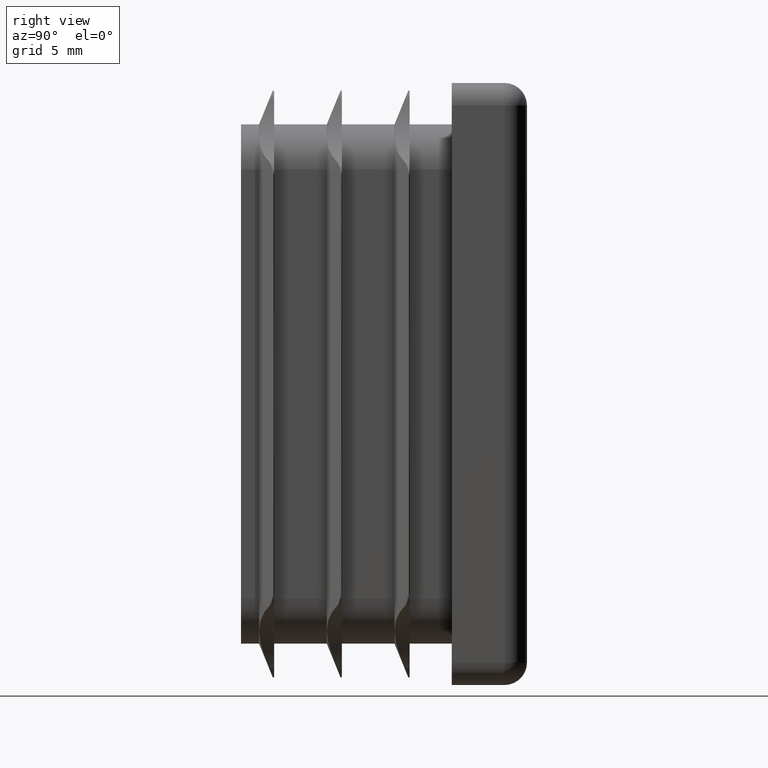
[diagram: clean part render]
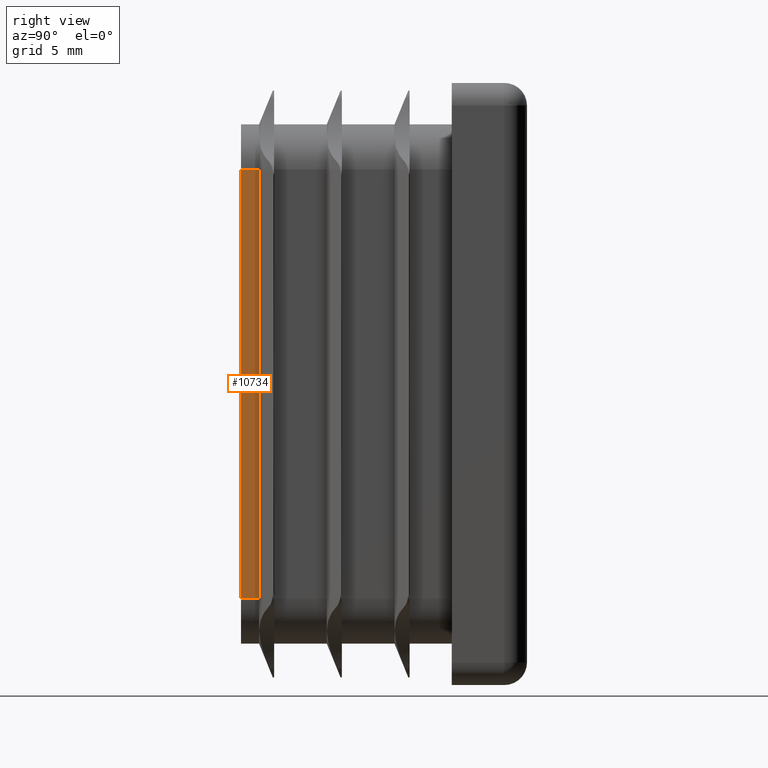
[diagram: same view with one face highlighted and labeled with its STEP entity id]
A machine part, right view. The second image highlights one B-rep face of the part: STEP entity #10734.
In plain terms, the highlighted planar face has unit normal (-1, 0, -0).
Its self-contained STEP definition (entity closure, byte-faithful):
#152 = CARTESIAN_POINT ( 'NONE',  ( 7.249999999999997335, -12.80000000000003801, 14.25000000000000178 ) ) ;
#1120 = LINE ( 'NONE', #3563, #8466 ) ;
#1464 = EDGE_CURVE ( 'NONE', #2292, #17430, #12190, .T. ) ;
#2169 = LINE ( 'NONE', #3127, #8350 ) ;
#2292 = VERTEX_POINT ( 'NONE', #152 ) ;
#2297 = CARTESIAN_POINT ( 'NONE',  ( 7.250000000000093259, -12.80000000000000071, 14.25000000000000000 ) ) ;
#2375 = LINE ( 'NONE', #5106, #12026 ) ;
#2941 = EDGE_CURVE ( 'NONE', #17430, #8506, #1120, .T. ) ;
#3127 = CARTESIAN_POINT ( 'NONE',  ( 7.249999999999997335, -14.00000000000000000, 14.25000000000000178 ) ) ;
#3563 = CARTESIAN_POINT ( 'NONE',  ( 7.250000000000096811, -12.80000000000000071, 0.000000000000000000 ) ) ;
#3825 = DIRECTION ( 'NONE',  ( 2.739037067331800623E-16, 0.000000000000000000, -1.000000000000000000 ) ) ;
#3832 = PLANE ( 'NONE',  #13405 ) ;
#4489 = CARTESIAN_POINT ( 'NONE',  ( 7.250000000000005329, -12.80000000000003979, -14.24999999999999822 ) ) ;
#5106 = CARTESIAN_POINT ( 'NONE',  ( 7.250000000000005329, -14.00000000000000000, -14.24999999999999822 ) ) ;
#5113 = CARTESIAN_POINT ( 'NONE',  ( 7.249999999999997335, -14.00000000000000000, 14.25000000000000178 ) ) ;
#5300 = CARTESIAN_POINT ( 'NONE',  ( 7.249999999999997335, -14.00000000000000000, 14.25000000000000178 ) ) ;
#5376 = ORIENTED_EDGE ( 'NONE', *, *, #16663, .F. ) ;
#7517 = CARTESIAN_POINT ( 'NONE',  ( 7.249999999999997335, -14.00000000000000000, 14.25000000000000178 ) ) ;
#7663 = LINE ( 'NONE', #5113, #9053 ) ;
#8084 = DIRECTION ( 'NONE',  ( -0.000000000000000000, 1.000000000000000000, -0.000000000000000000 ) ) ;
#8268 = DIRECTION ( 'NONE',  ( -2.739037067331801117E-16, 0.000000000000000000, 1.000000000000000000 ) ) ;
#8350 = VECTOR ( 'NONE', #13284, 1000.000000000000000 ) ;
#8466 = VECTOR ( 'NONE', #13790, 1000.000000000000000 ) ;
#8506 = VERTEX_POINT ( 'NONE', #4489 ) ;
#8594 = VERTEX_POINT ( 'NONE', #7517 ) ;
#9053 = VECTOR ( 'NONE', #8084, 1000.000000000000000 ) ;
#9128 = EDGE_LOOP ( 'NONE', ( #14794, #9148, #16982, #5376, #10245 ) ) ;
#9148 = ORIENTED_EDGE ( 'NONE', *, *, #1464, .F. ) ;
#9716 = CARTESIAN_POINT ( 'NONE',  ( 7.250000000000001776, -12.80000000000003801, 0.000000000000000000 ) ) ;
#10245 = ORIENTED_EDGE ( 'NONE', *, *, #17262, .T. ) ;
#10734 = ADVANCED_FACE ( 'NONE', ( #12726 ), #3832, .F. ) ;
#12026 = VECTOR ( 'NONE', #14121, 1000.000000000000000 ) ;
#12190 = LINE ( 'NONE', #2297, #13591 ) ;
#12726 = FACE_OUTER_BOUND ( 'NONE', #9128, .T. ) ;
#13284 = DIRECTION ( 'NONE',  ( -2.739037067331800623E-16, -0.000000000000000000, 1.000000000000000000 ) ) ;
#13405 = AXIS2_PLACEMENT_3D ( 'NONE', #5300, #17089, #8268 ) ;
#13591 = VECTOR ( 'NONE', #3825, 1000.000000000000000 ) ;
#13790 = DIRECTION ( 'NONE',  ( 2.739037067331800623E-16, 0.000000000000000000, -1.000000000000000000 ) ) ;
#14121 = DIRECTION ( 'NONE',  ( -0.000000000000000000, 1.000000000000000000, -0.000000000000000000 ) ) ;
#14543 = CARTESIAN_POINT ( 'NONE',  ( 7.250000000000005329, -14.00000000000000000, -14.24999999999999822 ) ) ;
#14794 = ORIENTED_EDGE ( 'NONE', *, *, #2941, .F. ) ;
#15693 = VERTEX_POINT ( 'NONE', #14543 ) ;
#16340 = EDGE_CURVE ( 'NONE', #8594, #2292, #7663, .T. ) ;
#16663 = EDGE_CURVE ( 'NONE', #15693, #8594, #2169, .T. ) ;
#16982 = ORIENTED_EDGE ( 'NONE', *, *, #16340, .F. ) ;
#17089 = DIRECTION ( 'NONE',  ( -1.000000000000000000, 0.000000000000000000, -2.739037067331801117E-16 ) ) ;
#17262 = EDGE_CURVE ( 'NONE', #15693, #8506, #2375, .T. ) ;
#17430 = VERTEX_POINT ( 'NONE', #9716 ) ;